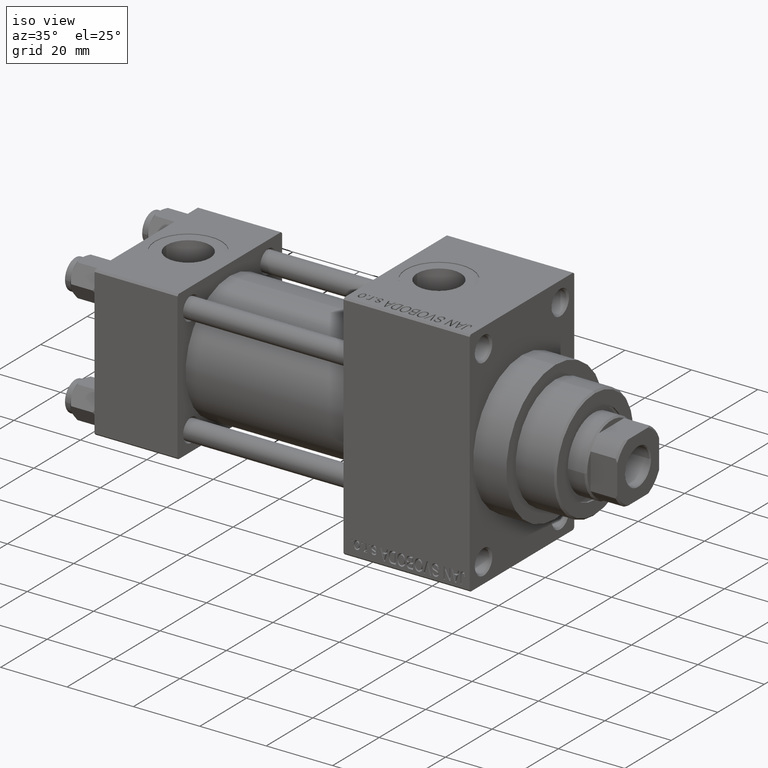
[diagram: clean part render]
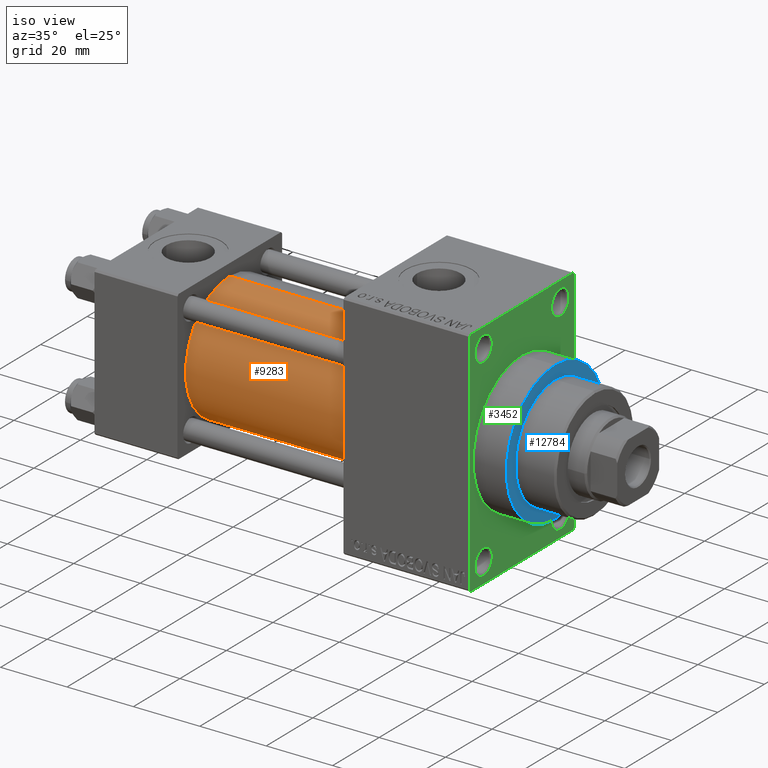
[diagram: same view with three faces highlighted in distinct colors, each labeled with its STEP entity id]
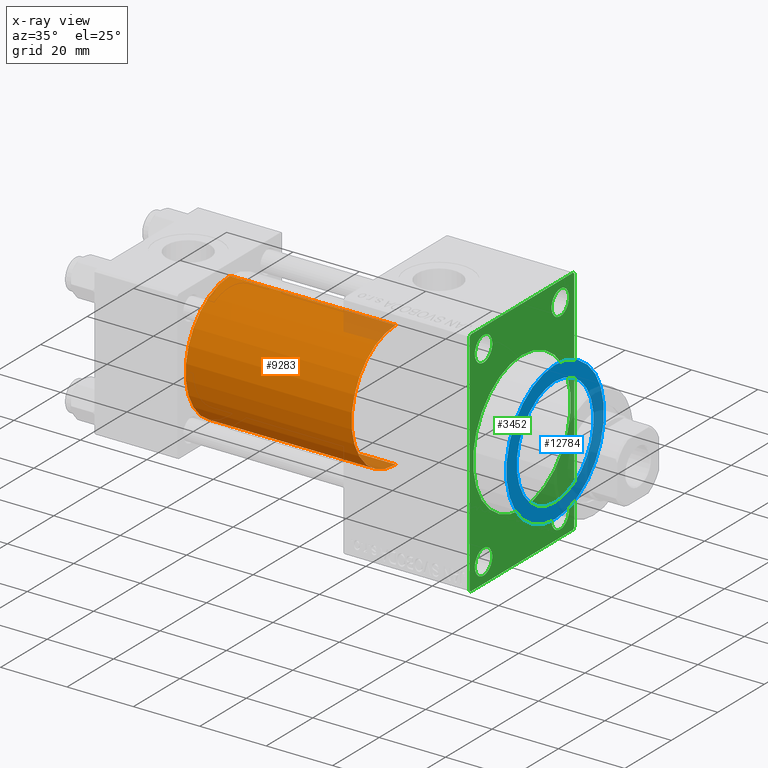
[diagram: x-ray of the same camera — body ghosted, the three highlighted faces saturated]
A machine part, iso view with three faces highlighted in distinct colors.
The next image is the same camera in x-ray (body ghosted, the three faces saturated) — at least one of them is partly hidden behind the body in this view.
Their STEP definitions:

[orange] entity #9283 — the highlighted cylindrical surface (partial cylindrical patch) has radius 19 mm, axis along (-1, -0, -0).
#93 = DIRECTION ( 'NONE',  ( 1.000000000000000000, 0.000000000000000000, 0.000000000000000000 ) ) ;
#177 = VERTEX_POINT ( 'NONE', #48698 ) ;
#536 = DIRECTION ( 'NONE',  ( -1.000000000000000000, -0.000000000000000000, -0.000000000000000000 ) ) ;
#3547 = VERTEX_POINT ( 'NONE', #19852 ) ;
#4242 = CARTESIAN_POINT ( 'NONE',  ( 75.00000000000001421, -2.752562955852396712E-16, -19.00000000000000000 ) ) ;
#5970 = AXIS2_PLACEMENT_3D ( 'NONE', #31960, #32199, #46512 ) ;
#6913 = VECTOR ( 'NONE', #536, 1000.000000000000000 ) ;
#9283 = ADVANCED_FACE ( 'NONE', ( #16919 ), #35904, .T. ) ;
#9500 = EDGE_CURVE ( 'NONE', #3547, #17183, #18594, .T. ) ;
#10750 = EDGE_CURVE ( 'NONE', #17183, #177, #11654, .T. ) ;
#11513 = AXIS2_PLACEMENT_3D ( 'NONE', #22326, #93, #15642 ) ;
#11654 = LINE ( 'NONE', #4242, #6913 ) ;
#12867 = CARTESIAN_POINT ( 'NONE',  ( 75.00000000000001421, -2.602085213965210642E-15, 19.00000000000000000 ) ) ;
#12950 = CARTESIAN_POINT ( 'NONE',  ( 25.00000000000000000, -2.602085213965210642E-15, 0.000000000000000000 ) ) ;
#14814 = ORIENTED_EDGE ( 'NONE', *, *, #9500, .F. ) ;
#15642 = DIRECTION ( 'NONE',  ( 0.000000000000000000, 0.000000000000000000, -1.000000000000000000 ) ) ;
#15679 = CARTESIAN_POINT ( 'NONE',  ( 25.00000000000000000, -2.602085213965210642E-15, 19.00000000000000000 ) ) ;
#16917 = AXIS2_PLACEMENT_3D ( 'NONE', #12950, #43043, #38849 ) ;
#16919 = FACE_OUTER_BOUND ( 'NONE', #29118, .T. ) ;
#17183 = VERTEX_POINT ( 'NONE', #22597 ) ;
#17663 = EDGE_CURVE ( 'NONE', #3547, #36868, #31615, .T. ) ;
#18594 = CIRCLE ( 'NONE', #11513, 19.00000000000000000 ) ;
#18670 = ORIENTED_EDGE ( 'NONE', *, *, #17663, .T. ) ;
#19852 = CARTESIAN_POINT ( 'NONE',  ( 75.00000000000001421, -2.602085213965210642E-15, 19.00000000000000000 ) ) ;
#22326 = CARTESIAN_POINT ( 'NONE',  ( 75.00000000000001421, -2.602085213965210642E-15, 0.000000000000000000 ) ) ;
#22597 = CARTESIAN_POINT ( 'NONE',  ( 75.00000000000001421, -2.752562955852396712E-16, -19.00000000000000000 ) ) ;
#26823 = EDGE_CURVE ( 'NONE', #36868, #177, #35787, .T. ) ;
#29118 = EDGE_LOOP ( 'NONE', ( #30870, #14814, #18670, #46270 ) ) ;
#30870 = ORIENTED_EDGE ( 'NONE', *, *, #10750, .F. ) ;
#31147 = DIRECTION ( 'NONE',  ( -1.000000000000000000, -0.000000000000000000, -0.000000000000000000 ) ) ;
#31615 = LINE ( 'NONE', #12867, #41034 ) ;
#31960 = CARTESIAN_POINT ( 'NONE',  ( 75.00000000000001421, -2.602085213965210642E-15, 0.000000000000000000 ) ) ;
#32199 = DIRECTION ( 'NONE',  ( -1.000000000000000000, -0.000000000000000000, -0.000000000000000000 ) ) ;
#35787 = CIRCLE ( 'NONE', #16917, 19.00000000000000000 ) ;
#35904 = CYLINDRICAL_SURFACE ( 'NONE', #5970, 19.00000000000000000 ) ;
#36868 = VERTEX_POINT ( 'NONE', #15679 ) ;
#38849 = DIRECTION ( 'NONE',  ( 0.000000000000000000, 0.000000000000000000, 1.000000000000000000 ) ) ;
#41034 = VECTOR ( 'NONE', #31147, 1000.000000000000000 ) ;
#43043 = DIRECTION ( 'NONE',  ( 1.000000000000000000, -0.000000000000000000, 0.000000000000000000 ) ) ;
#46270 = ORIENTED_EDGE ( 'NONE', *, *, #26823, .T. ) ;
#46512 = DIRECTION ( 'NONE',  ( 0.000000000000000000, 0.000000000000000000, 1.000000000000000000 ) ) ;
#48698 = CARTESIAN_POINT ( 'NONE',  ( 25.00000000000000000, -2.752562955852396712E-16, -19.00000000000000000 ) ) ;

[blue] entity #12784 — the highlighted planar face has unit normal (1, 0, 0).
#1566 = FACE_OUTER_BOUND ( 'NONE', #29677, .T. ) ;
#3057 = DIRECTION ( 'NONE',  ( 0.000000000000000000, 0.000000000000000000, -1.000000000000000000 ) ) ;
#4302 = CIRCLE ( 'NONE', #7445, 21.00000000000000000 ) ;
#5871 = AXIS2_PLACEMENT_3D ( 'NONE', #36865, #24792, #3057 ) ;
#7445 = AXIS2_PLACEMENT_3D ( 'NONE', #20904, #43839, #10027 ) ;
#8506 = FACE_BOUND ( 'NONE', #25767, .T. ) ;
#10027 = DIRECTION ( 'NONE',  ( 0.000000000000000000, 0.000000000000000000, -1.000000000000000000 ) ) ;
#10281 = AXIS2_PLACEMENT_3D ( 'NONE', #20114, #42539, #42060 ) ;
#12683 = CARTESIAN_POINT ( 'NONE',  ( 123.0000000000000142, 0.000000000000000000, 0.000000000000000000 ) ) ;
#12784 = ADVANCED_FACE ( 'NONE', ( #8506, #1566 ), #16165, .T. ) ;
#16165 = PLANE ( 'NONE',  #10281 ) ;
#16255 = CARTESIAN_POINT ( 'NONE',  ( 123.0000000000000142, 0.000000000000000000, 0.000000000000000000 ) ) ;
#17054 = ORIENTED_EDGE ( 'NONE', *, *, #26696, .T. ) ;
#19395 = CARTESIAN_POINT ( 'NONE',  ( 123.0000000000000142, 0.000000000000000000, 21.00000000000000000 ) ) ;
#19705 = DIRECTION ( 'NONE',  ( 1.000000000000000000, 0.000000000000000000, 0.000000000000000000 ) ) ;
#20114 = CARTESIAN_POINT ( 'NONE',  ( 123.0000000000000142, 0.000000000000000000, 0.000000000000000000 ) ) ;
#20716 = EDGE_CURVE ( 'NONE', #35113, #35502, #36415, .T. ) ;
#20904 = CARTESIAN_POINT ( 'NONE',  ( 123.0000000000000142, 0.000000000000000000, 0.000000000000000000 ) ) ;
#24792 = DIRECTION ( 'NONE',  ( 1.000000000000000000, 0.000000000000000000, 0.000000000000000000 ) ) ;
#25446 = EDGE_CURVE ( 'NONE', #42213, #28883, #29456, .T. ) ;
#25767 = EDGE_LOOP ( 'NONE', ( #43447, #46036 ) ) ;
#26696 = EDGE_CURVE ( 'NONE', #28883, #42213, #4302, .T. ) ;
#27010 = EDGE_CURVE ( 'NONE', #35502, #35113, #46070, .T. ) ;
#27909 = AXIS2_PLACEMENT_3D ( 'NONE', #12683, #43702, #36790 ) ;
#28883 = VERTEX_POINT ( 'NONE', #48843 ) ;
#29456 = CIRCLE ( 'NONE', #27909, 21.00000000000000000 ) ;
#29677 = EDGE_LOOP ( 'NONE', ( #36689, #17054 ) ) ;
#31291 = DIRECTION ( 'NONE',  ( 0.000000000000000000, 0.000000000000000000, -1.000000000000000000 ) ) ;
#34363 = CARTESIAN_POINT ( 'NONE',  ( 123.0000000000000142, 2.020667218593133100E-15, 16.50000000000000000 ) ) ;
#35113 = VERTEX_POINT ( 'NONE', #34363 ) ;
#35502 = VERTEX_POINT ( 'NONE', #41710 ) ;
#36415 = CIRCLE ( 'NONE', #39534, 16.50000000000000000 ) ;
#36689 = ORIENTED_EDGE ( 'NONE', *, *, #25446, .T. ) ;
#36790 = DIRECTION ( 'NONE',  ( 0.000000000000000000, 0.000000000000000000, -1.000000000000000000 ) ) ;
#36865 = CARTESIAN_POINT ( 'NONE',  ( 123.0000000000000142, 0.000000000000000000, 0.000000000000000000 ) ) ;
#39534 = AXIS2_PLACEMENT_3D ( 'NONE', #16255, #19705, #31291 ) ;
#41710 = CARTESIAN_POINT ( 'NONE',  ( 123.0000000000000142, 0.000000000000000000, -16.50000000000000000 ) ) ;
#42060 = DIRECTION ( 'NONE',  ( 0.000000000000000000, 0.000000000000000000, -1.000000000000000000 ) ) ;
#42213 = VERTEX_POINT ( 'NONE', #19395 ) ;
#42539 = DIRECTION ( 'NONE',  ( 1.000000000000000000, 0.000000000000000000, 0.000000000000000000 ) ) ;
#43447 = ORIENTED_EDGE ( 'NONE', *, *, #27010, .F. ) ;
#43702 = DIRECTION ( 'NONE',  ( 1.000000000000000000, 0.000000000000000000, 0.000000000000000000 ) ) ;
#43839 = DIRECTION ( 'NONE',  ( 1.000000000000000000, 0.000000000000000000, 0.000000000000000000 ) ) ;
#46036 = ORIENTED_EDGE ( 'NONE', *, *, #20716, .F. ) ;
#46070 = CIRCLE ( 'NONE', #5871, 16.50000000000000000 ) ;
#48843 = CARTESIAN_POINT ( 'NONE',  ( 123.0000000000000142, 2.571758278209441661E-15, -21.00000000000000000 ) ) ;

[green] entity #3452 — the highlighted planar face has unit normal (-1, 0, 0).
#316 = CARTESIAN_POINT ( 'NONE',  ( 113.0000000000000142, 0.000000000000000000, 0.000000000000000000 ) ) ;
#1401 = DIRECTION ( 'NONE',  ( 0.000000000000000000, 0.000000000000000000, 1.000000000000000000 ) ) ;
#1907 = CARTESIAN_POINT ( 'NONE',  ( 113.0000000000000142, -21.99999999999998934, -35.00000000000000000 ) ) ;
#1951 = DIRECTION ( 'NONE',  ( 0.000000000000000000, 0.000000000000000000, 1.000000000000000000 ) ) ;
#1961 = CARTESIAN_POINT ( 'NONE',  ( 113.0000000000000142, 0.000000000000000000, 0.000000000000000000 ) ) ;
#2414 = CARTESIAN_POINT ( 'NONE',  ( 113.0000000000000142, 16.50000000000000000, 29.00000000000000355 ) ) ;
#2470 = CIRCLE ( 'NONE', #28500, 3.750000000000076383 ) ;
#2539 = EDGE_CURVE ( 'NONE', #14629, #11187, #10291, .T. ) ;
#2583 = ORIENTED_EDGE ( 'NONE', *, *, #2539, .T. ) ;
#2585 = DIRECTION ( 'NONE',  ( -1.000000000000000000, -0.000000000000000000, -0.000000000000000000 ) ) ;
#3205 = DIRECTION ( 'NONE',  ( -1.000000000000000000, -0.000000000000000000, -0.000000000000000000 ) ) ;
#3452 = ADVANCED_FACE ( 'NONE', ( #17477, #29992, #14709, #25129, #22350, #14948 ), #47568, .F. ) ;
#3613 = ORIENTED_EDGE ( 'NONE', *, *, #39774, .T. ) ;
#4051 = ORIENTED_EDGE ( 'NONE', *, *, #6794, .F. ) ;
#4105 = CIRCLE ( 'NONE', #8046, 3.750000000000076383 ) ;
#4274 = ORIENTED_EDGE ( 'NONE', *, *, #37590, .T. ) ;
#4586 = VERTEX_POINT ( 'NONE', #15194 ) ;
#4677 = ORIENTED_EDGE ( 'NONE', *, *, #17592, .T. ) ;
#5262 = VERTEX_POINT ( 'NONE', #46793 ) ;
#5615 = CARTESIAN_POINT ( 'NONE',  ( 113.0000000000000142, 22.49999999999999645, -35.00000000000000000 ) ) ;
#6276 = CARTESIAN_POINT ( 'NONE',  ( 113.0000000000000142, 16.50000000000000000, 29.00000000000000355 ) ) ;
#6569 = CIRCLE ( 'NONE', #35725, 21.00000000000000000 ) ;
#6601 = DIRECTION ( 'NONE',  ( 0.000000000000000000, -0.7071067811865474617, 0.7071067811865474617 ) ) ;
#6794 = EDGE_CURVE ( 'NONE', #22356, #24113, #24375, .T. ) ;
#7245 = VERTEX_POINT ( 'NONE', #26037 ) ;
#7286 = DIRECTION ( 'NONE',  ( -0.000000000000000000, 0.000000000000000000, 1.000000000000000000 ) ) ;
#7861 = CIRCLE ( 'NONE', #13390, 3.750000000000072831 ) ;
#8046 = AXIS2_PLACEMENT_3D ( 'NONE', #46515, #20383, #31241 ) ;
#8108 = ORIENTED_EDGE ( 'NONE', *, *, #18868, .T. ) ;
#8413 = EDGE_CURVE ( 'NONE', #4586, #24159, #31926, .T. ) ;
#9005 = ORIENTED_EDGE ( 'NONE', *, *, #9395, .T. ) ;
#9088 = DIRECTION ( 'NONE',  ( 0.000000000000000000, -1.000000000000000000, 0.000000000000000000 ) ) ;
#9187 = ORIENTED_EDGE ( 'NONE', *, *, #26286, .F. ) ;
#9395 = EDGE_CURVE ( 'NONE', #34292, #33787, #35911, .T. ) ;
#9464 = AXIS2_PLACEMENT_3D ( 'NONE', #13238, #20639, #1401 ) ;
#9491 = CARTESIAN_POINT ( 'NONE',  ( 113.0000000000000142, -21.99999999999997513, -35.00000000000000000 ) ) ;
#9577 = ORIENTED_EDGE ( 'NONE', *, *, #46813, .F. ) ;
#9878 = CARTESIAN_POINT ( 'NONE',  ( 113.0000000000000142, 22.49999999999999645, 34.50000000000000000 ) ) ;
#10291 = LINE ( 'NONE', #13278, #25424 ) ;
#10942 = VERTEX_POINT ( 'NONE', #20748 ) ;
#11148 = VERTEX_POINT ( 'NONE', #23181 ) ;
#11187 = VERTEX_POINT ( 'NONE', #41363 ) ;
#11223 = VECTOR ( 'NONE', #32021, 999.9999999999998863 ) ;
#11227 = DIRECTION ( 'NONE',  ( -1.000000000000000000, 0.000000000000000000, -0.000000000000000000 ) ) ;
#11423 = EDGE_CURVE ( 'NONE', #24159, #4586, #7861, .T. ) ;
#11666 = CARTESIAN_POINT ( 'NONE',  ( 113.0000000000000142, -22.50000000000000355, 35.00000000000000000 ) ) ;
#11825 = CARTESIAN_POINT ( 'NONE',  ( 113.0000000000000142, 21.99999999999999645, -35.00000000000000000 ) ) ;
#12173 = ORIENTED_EDGE ( 'NONE', *, *, #28978, .T. ) ;
#12330 = CARTESIAN_POINT ( 'NONE',  ( 113.0000000000000142, -22.50000000000000355, 34.50000000000000000 ) ) ;
#12343 = DIRECTION ( 'NONE',  ( 0.000000000000000000, 0.000000000000000000, 1.000000000000000000 ) ) ;
#12562 = LINE ( 'NONE', #12330, #30301 ) ;
#13187 = CARTESIAN_POINT ( 'NONE',  ( 113.0000000000000142, -22.50000000000000355, -34.49999999999997158 ) ) ;
#13238 = CARTESIAN_POINT ( 'NONE',  ( 113.0000000000000142, -16.50000000000000000, -28.99999999999999289 ) ) ;
#13278 = CARTESIAN_POINT ( 'NONE',  ( 113.0000000000000142, 21.99999999999999645, 35.00000000000000000 ) ) ;
#13366 = EDGE_CURVE ( 'NONE', #21282, #27612, #13421, .T. ) ;
#13390 = AXIS2_PLACEMENT_3D ( 'NONE', #2414, #17474, #47566 ) ;
#13421 = CIRCLE ( 'NONE', #9464, 3.750000000000076383 ) ;
#13759 = EDGE_CURVE ( 'NONE', #5262, #11148, #23722, .T. ) ;
#13783 = CARTESIAN_POINT ( 'NONE',  ( 113.0000000000000142, 0.000000000000000000, 0.000000000000000000 ) ) ;
#14629 = VERTEX_POINT ( 'NONE', #9878 ) ;
#14656 = EDGE_CURVE ( 'NONE', #33787, #34292, #40964, .T. ) ;
#14709 = FACE_BOUND ( 'NONE', #47357, .T. ) ;
#14948 = FACE_OUTER_BOUND ( 'NONE', #25957, .T. ) ;
#15127 = LINE ( 'NONE', #11666, #15837 ) ;
#15167 = ORIENTED_EDGE ( 'NONE', *, *, #13759, .F. ) ;
#15194 = CARTESIAN_POINT ( 'NONE',  ( 113.0000000000000142, 16.50000000000000000, 32.75000000000007816 ) ) ;
#15390 = DIRECTION ( 'NONE',  ( 1.000000000000000000, 0.000000000000000000, 0.000000000000000000 ) ) ;
#15585 = VERTEX_POINT ( 'NONE', #19979 ) ;
#15837 = VECTOR ( 'NONE', #48680, 1000.000000000000000 ) ;
#15884 = ORIENTED_EDGE ( 'NONE', *, *, #8413, .T. ) ;
#16044 = DIRECTION ( 'NONE',  ( -1.000000000000000000, -0.000000000000000000, -0.000000000000000000 ) ) ;
#16611 = ORIENTED_EDGE ( 'NONE', *, *, #13366, .T. ) ;
#16709 = DIRECTION ( 'NONE',  ( -0.000000000000000000, 0.7071067811865474617, 0.7071067811865474617 ) ) ;
#17033 = DIRECTION ( 'NONE',  ( 1.000000000000000000, 0.000000000000000000, 0.000000000000000000 ) ) ;
#17263 = DIRECTION ( 'NONE',  ( 0.000000000000000000, 0.000000000000000000, -1.000000000000000000 ) ) ;
#17474 = DIRECTION ( 'NONE',  ( -1.000000000000000000, -0.000000000000000000, -0.000000000000000000 ) ) ;
#17477 = FACE_BOUND ( 'NONE', #28992, .T. ) ;
#17592 = EDGE_CURVE ( 'NONE', #34560, #36979, #15127, .T. ) ;
#18193 = AXIS2_PLACEMENT_3D ( 'NONE', #316, #15390, #26501 ) ;
#18868 = EDGE_CURVE ( 'NONE', #27612, #21282, #2470, .T. ) ;
#19248 = AXIS2_PLACEMENT_3D ( 'NONE', #46140, #16044, #12343 ) ;
#19979 = CARTESIAN_POINT ( 'NONE',  ( 113.0000000000000142, 16.50000000000000000, -25.24999999999992184 ) ) ;
#20250 = DIRECTION ( 'NONE',  ( -1.000000000000000000, -0.000000000000000000, -0.000000000000000000 ) ) ;
#20306 = ORIENTED_EDGE ( 'NONE', *, *, #44273, .T. ) ;
#20383 = DIRECTION ( 'NONE',  ( -1.000000000000000000, -0.000000000000000000, -0.000000000000000000 ) ) ;
#20639 = DIRECTION ( 'NONE',  ( -1.000000000000000000, -0.000000000000000000, -0.000000000000000000 ) ) ;
#20748 = CARTESIAN_POINT ( 'NONE',  ( 113.0000000000000142, 16.50000000000000000, -32.75000000000007105 ) ) ;
#21230 = CARTESIAN_POINT ( 'NONE',  ( 113.0000000000000142, -16.50000000000000000, -32.75000000000007105 ) ) ;
#21282 = VERTEX_POINT ( 'NONE', #21230 ) ;
#22055 = LINE ( 'NONE', #37097, #45080 ) ;
#22100 = CARTESIAN_POINT ( 'NONE',  ( 113.0000000000000142, -16.50000000000000000, 32.75000000000007816 ) ) ;
#22350 = FACE_BOUND ( 'NONE', #43786, .T. ) ;
#22356 = VERTEX_POINT ( 'NONE', #11825 ) ;
#23181 = CARTESIAN_POINT ( 'NONE',  ( 113.0000000000000142, 2.571758278209441661E-15, -21.00000000000000000 ) ) ;
#23204 = VECTOR ( 'NONE', #9088, 1000.000000000000000 ) ;
#23280 = ORIENTED_EDGE ( 'NONE', *, *, #11423, .T. ) ;
#23417 = LINE ( 'NONE', #1907, #11223 ) ;
#23439 = DIRECTION ( 'NONE',  ( -0.000000000000000000, -0.7071067811865474617, -0.7071067811865474617 ) ) ;
#23722 = CIRCLE ( 'NONE', #18193, 21.00000000000000000 ) ;
#24113 = VERTEX_POINT ( 'NONE', #9491 ) ;
#24159 = VERTEX_POINT ( 'NONE', #26272 ) ;
#24375 = LINE ( 'NONE', #5615, #23204 ) ;
#24641 = CARTESIAN_POINT ( 'NONE',  ( 113.0000000000000142, -22.50000000000000355, 34.50000000000000000 ) ) ;
#25129 = FACE_BOUND ( 'NONE', #33906, .T. ) ;
#25424 = VECTOR ( 'NONE', #6601, 1000.000000000000114 ) ;
#25629 = EDGE_CURVE ( 'NONE', #15585, #10942, #31036, .T. ) ;
#25860 = VECTOR ( 'NONE', #16709, 1000.000000000000114 ) ;
#25957 = EDGE_LOOP ( 'NONE', ( #4677, #37733, #4051, #4274, #9187, #2583, #3613, #12173 ) ) ;
#26037 = CARTESIAN_POINT ( 'NONE',  ( 113.0000000000000142, 22.49999999999999645, -34.50000000000000000 ) ) ;
#26249 = DIRECTION ( 'NONE',  ( 0.000000000000000000, -1.000000000000000000, 0.000000000000000000 ) ) ;
#26272 = CARTESIAN_POINT ( 'NONE',  ( 113.0000000000000142, 16.50000000000000000, 25.24999999999993250 ) ) ;
#26286 = EDGE_CURVE ( 'NONE', #14629, #7245, #32914, .T. ) ;
#26501 = DIRECTION ( 'NONE',  ( 0.000000000000000000, 0.000000000000000000, -1.000000000000000000 ) ) ;
#27612 = VERTEX_POINT ( 'NONE', #47432 ) ;
#27879 = CARTESIAN_POINT ( 'NONE',  ( 113.0000000000000142, -16.50000000000000000, -28.99999999999999289 ) ) ;
#28500 = AXIS2_PLACEMENT_3D ( 'NONE', #27879, #20250, #1951 ) ;
#28748 = DIRECTION ( 'NONE',  ( 0.000000000000000000, 0.000000000000000000, 1.000000000000000000 ) ) ;
#28978 = EDGE_CURVE ( 'NONE', #40084, #34560, #12562, .T. ) ;
#28992 = EDGE_LOOP ( 'NONE', ( #9005, #37398 ) ) ;
#29992 = FACE_BOUND ( 'NONE', #39389, .T. ) ;
#30301 = VECTOR ( 'NONE', #23439, 1000.000000000000114 ) ;
#31036 = CIRCLE ( 'NONE', #19248, 3.750000000000076383 ) ;
#31241 = DIRECTION ( 'NONE',  ( 0.000000000000000000, 0.000000000000000000, 1.000000000000000000 ) ) ;
#31866 = CARTESIAN_POINT ( 'NONE',  ( 113.0000000000000142, -16.50000000000000000, 25.24999999999993960 ) ) ;
#31926 = CIRCLE ( 'NONE', #33523, 3.750000000000072831 ) ;
#32021 = DIRECTION ( 'NONE',  ( 0.000000000000000000, 0.7071067811865376918, -0.7071067811865574537 ) ) ;
#32173 = CARTESIAN_POINT ( 'NONE',  ( 113.0000000000000142, 22.49999999999999645, 35.00000000000000000 ) ) ;
#32914 = LINE ( 'NONE', #32173, #43676 ) ;
#33523 = AXIS2_PLACEMENT_3D ( 'NONE', #6276, #47474, #28748 ) ;
#33787 = VERTEX_POINT ( 'NONE', #22100 ) ;
#33906 = EDGE_LOOP ( 'NONE', ( #23280, #15884 ) ) ;
#34292 = VERTEX_POINT ( 'NONE', #31866 ) ;
#34560 = VERTEX_POINT ( 'NONE', #24641 ) ;
#35696 = LINE ( 'NONE', #38441, #25860 ) ;
#35725 = AXIS2_PLACEMENT_3D ( 'NONE', #1961, #17033, #17263 ) ;
#35911 = CIRCLE ( 'NONE', #40636, 3.750000000000069278 ) ;
#36278 = DIRECTION ( 'NONE',  ( 0.000000000000000000, 0.000000000000000000, 1.000000000000000000 ) ) ;
#36979 = VERTEX_POINT ( 'NONE', #13187 ) ;
#37097 = CARTESIAN_POINT ( 'NONE',  ( 113.0000000000000142, 22.49999999999999645, 35.00000000000000000 ) ) ;
#37337 = ORIENTED_EDGE ( 'NONE', *, *, #25629, .T. ) ;
#37398 = ORIENTED_EDGE ( 'NONE', *, *, #14656, .T. ) ;
#37590 = EDGE_CURVE ( 'NONE', #22356, #7245, #35696, .T. ) ;
#37733 = ORIENTED_EDGE ( 'NONE', *, *, #44107, .T. ) ;
#38441 = CARTESIAN_POINT ( 'NONE',  ( 113.0000000000000142, 22.49999999999999645, -34.50000000000000000 ) ) ;
#39389 = EDGE_LOOP ( 'NONE', ( #16611, #8108 ) ) ;
#39774 = EDGE_CURVE ( 'NONE', #11187, #40084, #22055, .T. ) ;
#39819 = DIRECTION ( 'NONE',  ( 0.000000000000000000, 0.000000000000000000, -1.000000000000000000 ) ) ;
#40084 = VERTEX_POINT ( 'NONE', #45182 ) ;
#40636 = AXIS2_PLACEMENT_3D ( 'NONE', #48218, #2585, #44031 ) ;
#40964 = CIRCLE ( 'NONE', #47254, 3.750000000000069278 ) ;
#41363 = CARTESIAN_POINT ( 'NONE',  ( 113.0000000000000142, 21.99999999999999645, 35.00000000000000000 ) ) ;
#43676 = VECTOR ( 'NONE', #39819, 1000.000000000000000 ) ;
#43786 = EDGE_LOOP ( 'NONE', ( #15167, #9577 ) ) ;
#44031 = DIRECTION ( 'NONE',  ( 0.000000000000000000, 0.000000000000000000, 1.000000000000000000 ) ) ;
#44107 = EDGE_CURVE ( 'NONE', #36979, #24113, #23417, .T. ) ;
#44273 = EDGE_CURVE ( 'NONE', #10942, #15585, #4105, .T. ) ;
#45080 = VECTOR ( 'NONE', #26249, 1000.000000000000000 ) ;
#45182 = CARTESIAN_POINT ( 'NONE',  ( 113.0000000000000142, -21.99999999999998934, 35.00000000000000000 ) ) ;
#46140 = CARTESIAN_POINT ( 'NONE',  ( 113.0000000000000142, 16.50000000000000000, -28.99999999999999289 ) ) ;
#46515 = CARTESIAN_POINT ( 'NONE',  ( 113.0000000000000142, 16.50000000000000000, -28.99999999999999289 ) ) ;
#46793 = CARTESIAN_POINT ( 'NONE',  ( 113.0000000000000142, 0.000000000000000000, 21.00000000000000000 ) ) ;
#46813 = EDGE_CURVE ( 'NONE', #11148, #5262, #6569, .T. ) ;
#47254 = AXIS2_PLACEMENT_3D ( 'NONE', #47874, #3205, #36278 ) ;
#47357 = EDGE_LOOP ( 'NONE', ( #20306, #37337 ) ) ;
#47432 = CARTESIAN_POINT ( 'NONE',  ( 113.0000000000000142, -16.50000000000000000, -25.24999999999992184 ) ) ;
#47474 = DIRECTION ( 'NONE',  ( -1.000000000000000000, -0.000000000000000000, -0.000000000000000000 ) ) ;
#47566 = DIRECTION ( 'NONE',  ( 0.000000000000000000, 0.000000000000000000, 1.000000000000000000 ) ) ;
#47568 = PLANE ( 'NONE',  #48301 ) ;
#47874 = CARTESIAN_POINT ( 'NONE',  ( 113.0000000000000142, -16.50000000000000000, 29.00000000000000711 ) ) ;
#48218 = CARTESIAN_POINT ( 'NONE',  ( 113.0000000000000142, -16.50000000000000000, 29.00000000000000711 ) ) ;
#48301 = AXIS2_PLACEMENT_3D ( 'NONE', #13783, #11227, #7286 ) ;
#48680 = DIRECTION ( 'NONE',  ( 0.000000000000000000, 0.000000000000000000, -1.000000000000000000 ) ) ;